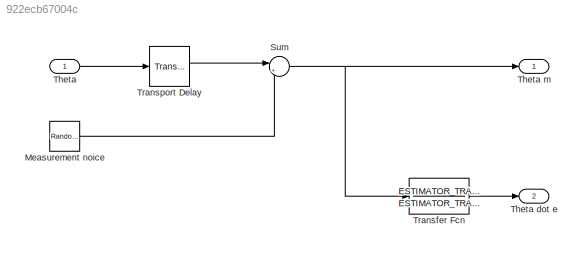
MODEL slx_922ecb67004c
KIND model
CONFIG AbsTol = auto
CONFIG EnableMultiTasking = off
CONFIG FixedStep = auto
CONFIG MaxStep = auto
CONFIG MinStep = auto
CONFIG RelTol = 1e-3
CONFIG SampleTimeConstraint = Unconstrained
CONFIG SolverName = VariableStepAuto
CONFIG StartTime = 0.0
CONFIG StopTime = 10.0
BLOCK [RandomNumber] Measurement noice
  SampleTime = 0.1
  Variance = MEASUREMENT_NOISE_VARIANCE
BLOCK [Sum] Sum
  Inputs = |++
  Ports = [2, 1]
BLOCK [Inport] Theta
BLOCK [Outport] Theta dot e
  Port = 2
BLOCK [Outport] Theta m
BLOCK [TransferFcn] Transfer Fcn
  Denominator = ESTIMATOR_TRANSFER_FUNCTION_DENOMINATOR
  Numerator = ESTIMATOR_TRANSFER_FUNCTION_NUMERATOR
BLOCK [TransportDelay] Transport Delay
  DelayTime = MEASUREMENT_DELAY
  Ports = [1, 1]
LINE Measurement noice:1 -> Sum:2
NET Sum:1 -> Theta m:1, Transfer Fcn:1
LINE Theta:1 -> Transport Delay:1
LINE Transfer Fcn:1 -> Theta dot e:1
LINE Transport Delay:1 -> Sum:1
note: NET lines group one-source signal fan-out (src -> all destinations, sorted); 1:1 wires keep LINE
